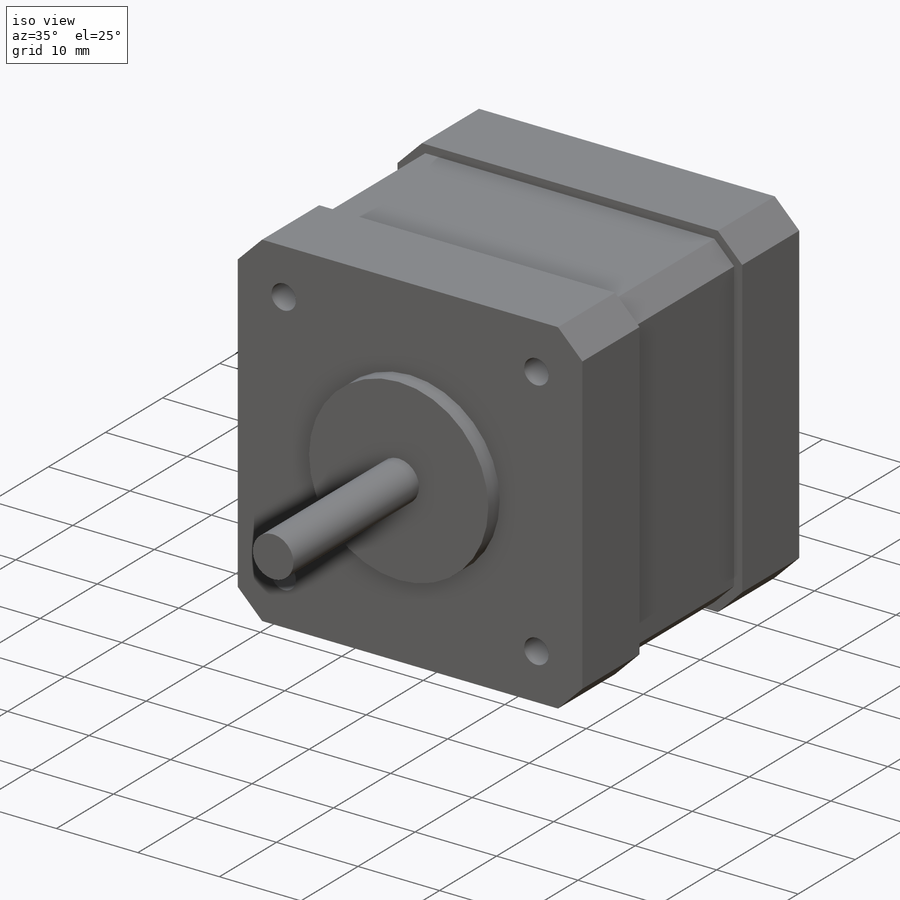
[diagram: iso view]
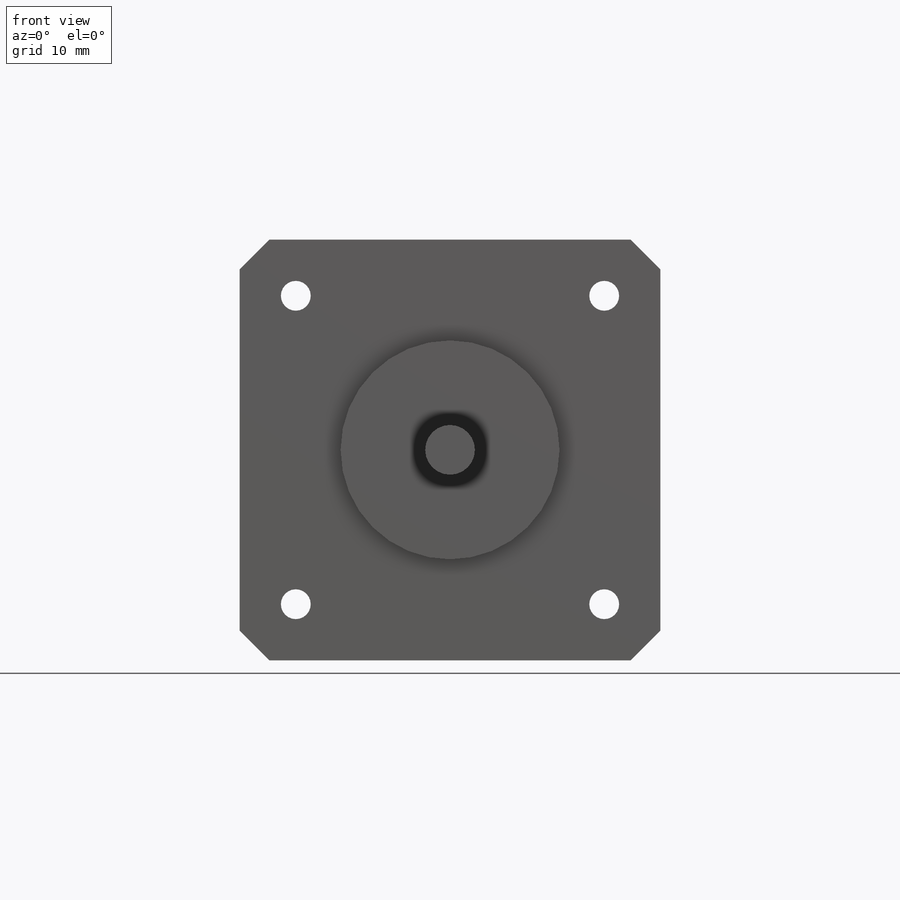
[diagram: front view]
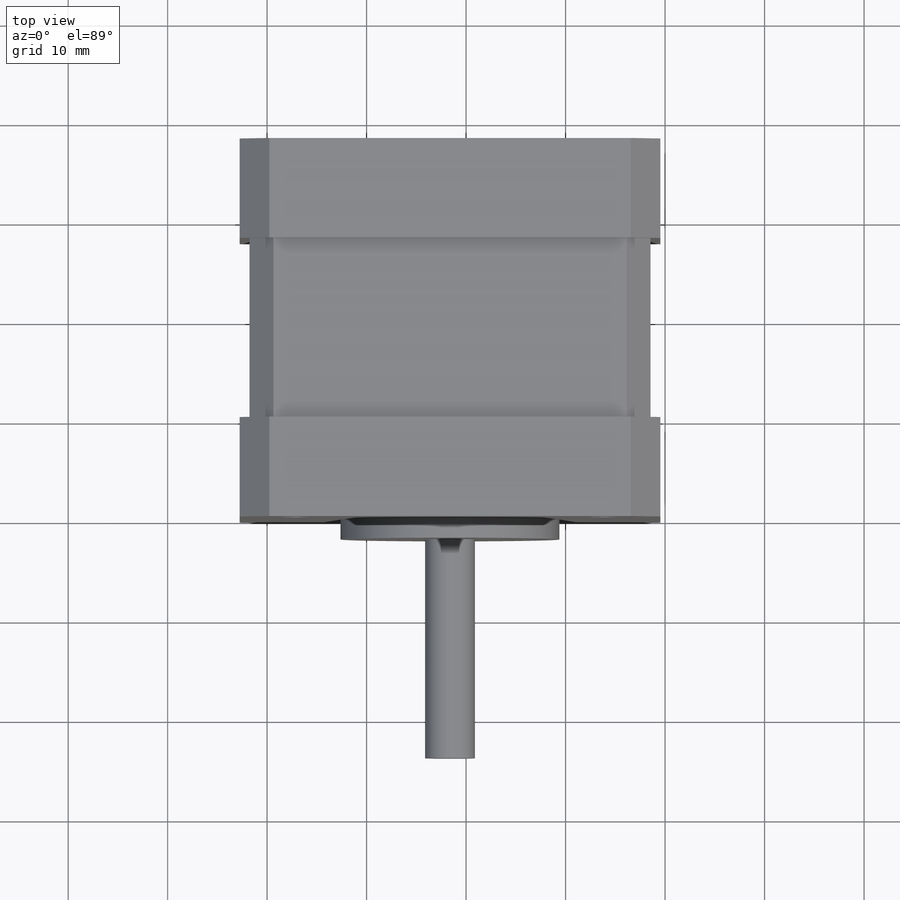
[diagram: top view]
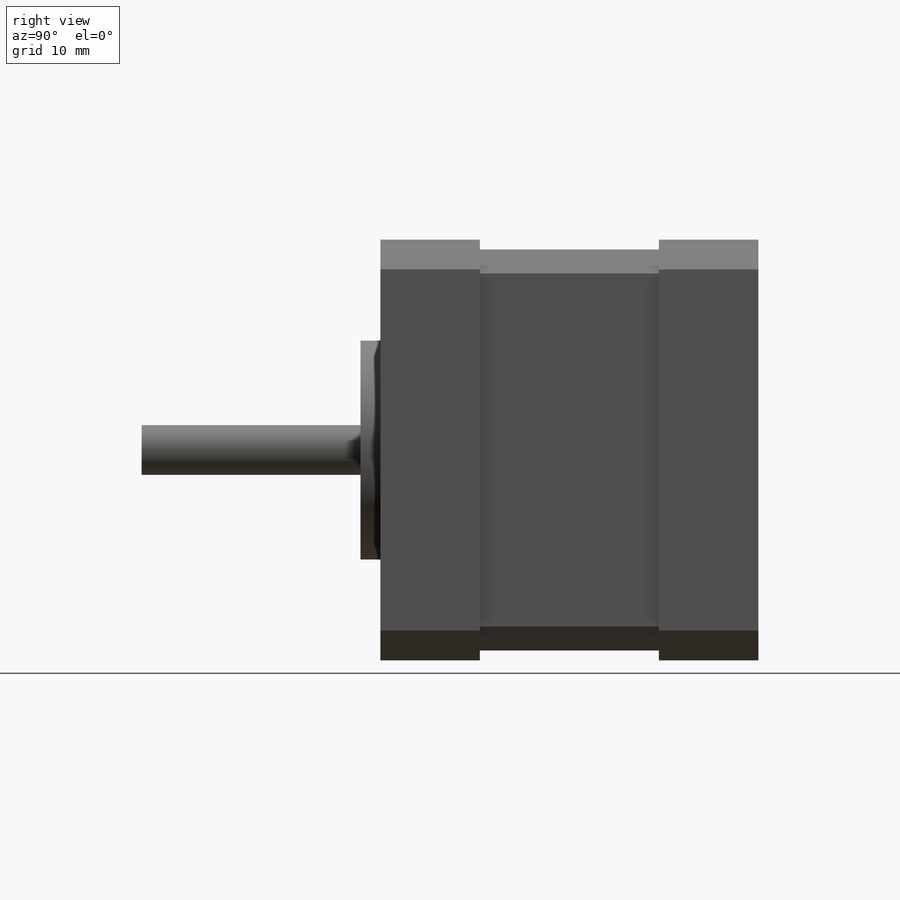
[diagram: right view]
SOLIDWORKS PART (.sldprt)
format: sldprt  version: not decoded by parser v0  size: 284,160 bytes
history: native  units: mm
features: sketch x7, extrude x5, plane x3, cut_extrude x2, material x1 (+10 scaffold rows collapsed)
feature tree (28):
  scaffold x10  (default folders/planes/origin — collapsed)
  material  "Material <not specified>"
  plane  "Спереди"
  plane  "Сверху"
  plane  "Справа"
  sketch  "Эскиз1"  dims[D1=42.3mm]
  extrude  "Бобышка-Вытянуть1"  Depth=10mm
  sketch  "Эскиз2"  dims[D1=22.0mm]
  extrude  "Бобышка-Вытянуть2"  Depth=2mm
  sketch  "Эскиз3"  dims[D1=5.0mm]
  extrude  "Бобышка-Вытянуть3"  Depth=22mm
  sketch  "Эскиз6"  dims[D1=1.0mm D2=1.0mm D3=1.0mm D4=1.0mm]
  extrude  "Бобышка-Вытянуть4"  Depth=18mm
  sketch  "Эскиз7"  dims[D1=42.3mm]
  extrude  "Бобышка-Вытянуть5"  Depth=10mm
  sketch  "Эскиз4"  dims[c1.D1=~4.815863mm c1.D3=3.0mm c2.D1=15.5mm c2.D2=15.5mm c2.D3=~3.13842mm c2.D4=~5.454686mm c3.D2=15.5mm c3.D3=~16.68282mm c3.D1=31.0mm c4.D2=31.0mm]
  cut_extrude  "Вырез-Вытянуть1"  Depth=46.5mm
  sketch  "Эскиз5"  dims[D1=5.0mm]
  cut_extrude  "Вырез-Вытянуть2"  Depth=1mm
decode coverage: 14 of 14 modeling features carry decoded parameters
note: ~ marks probable driven/reference dimensions
note: suppression state not decoded; provenance and decode notes live in map.json
